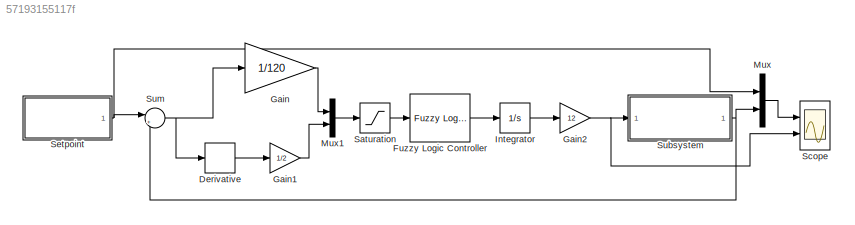
MODEL slx_57193155117f
KIND model
CONFIG AbsTol = auto
CONFIG EnableMultiTasking = off
CONFIG FixedStep = 0.01
CONFIG MaxStep = auto
CONFIG MinStep = auto
CONFIG RelTol = 1e-3
CONFIG SampleTimeConstraint = Unconstrained
CONFIG Solver = ode5
CONFIG SolverName = ode5
CONFIG StartTime = 0.0
CONFIG StopTime = 1000
BLOCK [Derivative] Derivative
BLOCK [Reference] Fuzzy Logic Controller  REF=fuzblock/Fuzzy Logic   (lib defined in mdl_858b3b3e7478)
Controller
  Ports = [1, 1]
  SourceBlock = fuzblock/Fuzzy Logic \nController
  SourceType = FIS
BLOCK [Gain] Gain
  Gain = 1/120
  OutDataTypeStr = Inherit: Inherit via internal rule
  ParamDataTypeStr = Inherit: Inherit via internal rule
  SaturateOnIntegerOverflow = off
BLOCK [Gain] Gain1
  Gain = 1/2
  OutDataTypeStr = Inherit: Inherit via internal rule
  ParamDataTypeStr = Inherit: Inherit via internal rule
  SaturateOnIntegerOverflow = off
BLOCK [Gain] Gain2
  Gain = 12
  OutDataTypeStr = Inherit: Inherit via internal rule
  ParamDataTypeStr = Inherit: Inherit via internal rule
  SaturateOnIntegerOverflow = off
BLOCK [Integrator] Integrator
  LimitOutput = on
  LowerSaturationLimit = -1
  Ports = [1, 1]
  UpperSaturationLimit = 1
BLOCK [Mux] Mux
  DisplayOption = bar
  Inputs = 2
  Ports = [2, 1]
BLOCK [Mux] Mux1
  DisplayOption = bar
  Inputs = 2
  Ports = [2, 1]
BLOCK [Saturate] Saturation
  InputPortMap = u0
  LowerLimit = -1
  Ports = [1, 1]
  UpperLimit = 1
BLOCK [Scope] Scope
  NumInputPorts = 2
  Ports = [2]
  ScopeSpecificationString = Simulink.scopes.TimeScopeBlockCfg('CurrentConfiguration', extmgr.ConfigurationSet(extmgr.Configuration('Core','General UI',true),extmgr.Configuration('Core','Source UI',true),extmgr.Configuration('Sources','WiredSimulink',true),extmgr.Configuration('Visuals','Time Domain',true,'SerializedDisplays',{struct('MinYLimReal','-218.91362','MaxYLimReal','135.43485','YLabelReal','','MinYLimMag',' 0.00000',...<+1416ch>
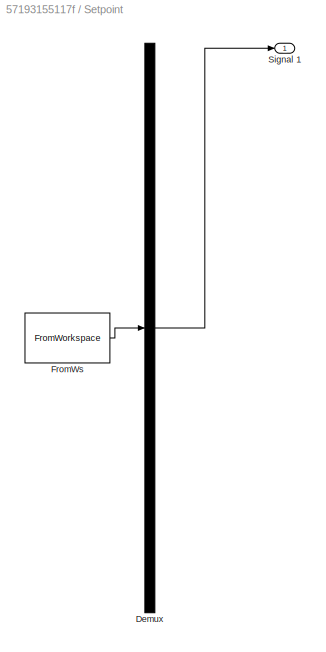
BLOCK [SubSystem] Setpoint
  ClipboardFcn = sigbuilder_block('clipboard');
  CloseFcn = sigbuilder_block('close');
  ContinueFcn = sigbuilder_block('continue');
  CopyFcn = sigbuilder_block('copy');
  DeleteFcn = sigbuilder_block('delete');
  LoadFcn = sigbuilder_block('load');
  MaskHideContents = on
  ModelCloseFcn = sigbuilder_block('modelClose');
  NameChangeFcn = sigbuilder_block('namechange');
  OpenFcn = sigbuilder_block('open',[437.6 199.2 550.4 400 ]);
  PauseFcn = sigbuilder_block('pause');
  Ports = [0, 1]
  PreSaveFcn = sigbuilder_block('preSave');
  RequestExecContextInheritance = off
  StartFcn = sigbuilder_block('start');
  StopFcn = sigbuilder_block('stop');
  Tag = STV Subsys
  Variant = off
BLOCK [Demux] Setpoint/Demux
  Outputs = 1
  Ports = [1, 1]
  Tag = STV Demux
BLOCK [FromWorkspace] Setpoint/FromWs
  SampleTime = 0
  Tag = STV FromWs
  VariableName = tuvar
  ZeroCross = on
BLOCK [Outport] Setpoint/Signal 1
  IconDisplay = Port number
  Tag = STV Outport
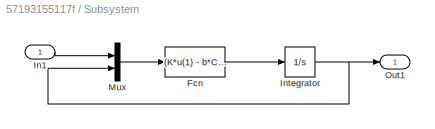
BLOCK [SubSystem] Subsystem
  Ports = [1, 1]
  RequestExecContextInheritance = off
  Variant = off
BLOCK [Fcn] Subsystem/Fcn
  Expr = (K*u(1) - b*C*sqrt(2*g*u(2)))/A
BLOCK [Inport] Subsystem/In1
  IconDisplay = Port number
BLOCK [Integrator] Subsystem/Integrator
  Ports = [1, 1]
BLOCK [Mux] Subsystem/Mux
  DisplayOption = bar
  Inputs = 2
  Ports = [2, 1]
BLOCK [Outport] Subsystem/Out1
  IconDisplay = Port number
BLOCK [Sum] Sum
  IconShape = round
  InputSameDT = off
  Inputs = |+-
  OutDataTypeStr = Inherit: Inherit via internal rule
  Ports = [2, 1]
  SaturateOnIntegerOverflow = off
LINE Derivative:1 -> Gain1:1
LINE Fuzzy Logic Controller:1 -> Integrator:1
LINE Gain1:1 -> Mux1:2
NET Gain2:1 -> Scope:2, Subsystem:1
LINE Gain:1 -> Mux1:1
LINE Integrator:1 -> Gain2:1
LINE Mux1:1 -> Saturation:1
LINE Mux:1 -> Scope:1
LINE Saturation:1 -> Fuzzy Logic Controller:1
NET Setpoint:1 -> Mux:1, Sum:1
LINE Subsystem/Fcn:1 -> Subsystem/Integrator:1
LINE Subsystem/In1:1 -> Subsystem/Mux:1
NET Subsystem/Integrator:1 -> Subsystem/Mux:2, Subsystem/Out1:1
LINE Subsystem/Mux:1 -> Subsystem/Fcn:1
NET Subsystem:1 -> Mux:2, Sum:2
NET Sum:1 -> Derivative:1, Gain:1
note: NET lines group one-source signal fan-out (src -> all destinations, sorted); 1:1 wires keep LINE
